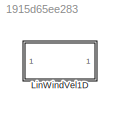
MODEL slx_1915d65ee283
KIND library
CONFIG AbsTol = auto
CONFIG EnableMultiTasking = off
CONFIG FixedStep = auto
CONFIG MaxStep = auto
CONFIG MinStep = auto
CONFIG RelTol = 1e-3
CONFIG SampleTimeConstraint = Unconstrained
CONFIG Solver = VariableStepAuto
CONFIG SolverName = VariableStepAuto
CONFIG StartTime = 0.0
CONFIG StopTime = 10.0
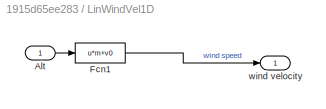
BLOCK [SubSystem] LinWindVel1D
  Ports = [1, 1]
  RequestExecContextInheritance = off
BLOCK [Inport] LinWindVel1D/Alt
BLOCK [Fcn] LinWindVel1D/Fcn1
  Expr = u*m+v0
BLOCK [Outport] LinWindVel1D/wind velocity
  VectorParamsAs1DForOutWhenUnconnected = off
LINE LinWindVel1D/Alt:1 -> LinWindVel1D/Fcn1:1
LINE LinWindVel1D/Fcn1:1 -> LinWindVel1D/wind velocity:1
